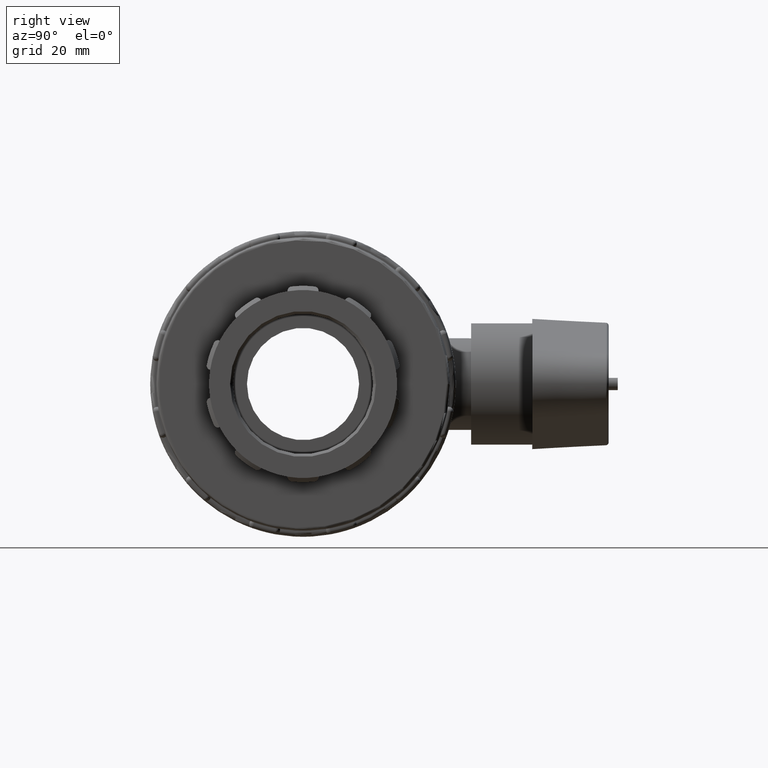
[diagram: clean part render]
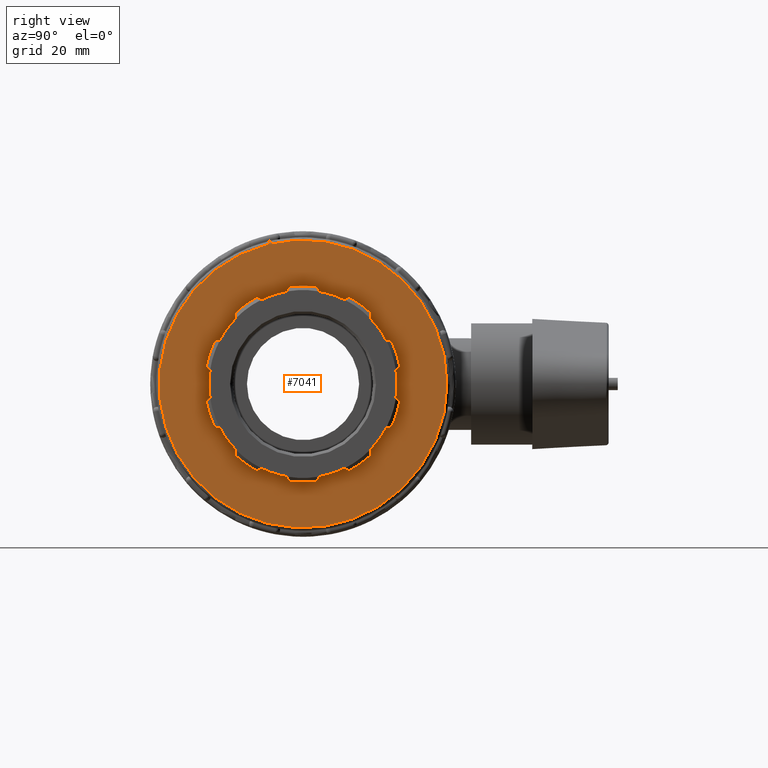
[diagram: same view with one face highlighted and labeled with its STEP entity id]
A machine part, right view. The second image highlights one B-rep face of the part: STEP entity #7041.
In plain terms, the highlighted planar face has unit normal (1, 0, 0).
Its self-contained STEP definition (entity closure, byte-faithful):
#215=FACE_BOUND('',#1294,.T.);
#334=PLANE('',#7990);
#844=FACE_OUTER_BOUND('',#1293,.T.);
#1293=EDGE_LOOP('',(#6255));
#1294=EDGE_LOOP('',(#6256,#6257,#6258,#6259,#6260,#6261,#6262,#6263,#6264,
#6265,#6266,#6267,#6268,#6269,#6270,#6271,#6272,#6273,#6274,#6275,#6276,
#6277,#6278,#6279,#6280,#6281,#6282,#6283,#6284,#6285,#6286,#6287,#6288,
#6289,#6290,#6291,#6292,#6293,#6294,#6295));
#2140=CIRCLE('',#7118,0.908729999999998);
#2141=CIRCLE('',#7120,0.908729999999994);
#2142=CIRCLE('',#7122,21.2037);
#2149=CIRCLE('',#7134,0.908729999999998);
#2150=CIRCLE('',#7136,0.908730000000002);
#2152=CIRCLE('',#7139,21.2037);
#2158=CIRCLE('',#7150,0.908729999999997);
#2159=CIRCLE('',#7152,0.908729999999998);
#2161=CIRCLE('',#7155,21.2037);
#2167=CIRCLE('',#7166,0.908730000000003);
#2168=CIRCLE('',#7168,0.908729999999999);
#2170=CIRCLE('',#7171,21.2037);
#2176=CIRCLE('',#7182,0.90873);
#2177=CIRCLE('',#7184,0.90873);
#2179=CIRCLE('',#7187,21.2037);
#2185=CIRCLE('',#7198,0.908729999999999);
#2186=CIRCLE('',#7200,0.908730000000003);
#2188=CIRCLE('',#7203,21.2037);
#2194=CIRCLE('',#7214,0.908729999999998);
#2195=CIRCLE('',#7216,0.908729999999997);
#2197=CIRCLE('',#7219,21.2037);
#2203=CIRCLE('',#7230,0.908730000000002);
#2204=CIRCLE('',#7232,0.908729999999998);
#2206=CIRCLE('',#7235,21.2037);
#2211=CIRCLE('',#7244,0.908730000000003);
#2214=CIRCLE('',#7249,0.908729999999999);
#2216=CIRCLE('',#7252,21.2037);
#2237=CIRCLE('',#7284,20.29497);
#2239=CIRCLE('',#7287,20.29497);
#2241=CIRCLE('',#7290,20.29497);
#2243=CIRCLE('',#7293,20.29497);
#2245=CIRCLE('',#7296,20.29497);
#2247=CIRCLE('',#7299,20.29497);
#2249=CIRCLE('',#7302,20.29497);
#2251=CIRCLE('',#7305,20.29497);
#2253=CIRCLE('',#7308,20.29497);
#2263=CIRCLE('',#7328,21.2037);
#2267=CIRCLE('',#7336,0.90873);
#2268=CIRCLE('',#7338,0.90873);
#2272=CIRCLE('',#7344,20.29497);
#2618=CIRCLE('',#7988,31.07418);
#2675=VERTEX_POINT('',#10519);
#2676=VERTEX_POINT('',#10521);
#2677=VERTEX_POINT('',#10525);
#2678=VERTEX_POINT('',#10526);
#2681=VERTEX_POINT('',#10545);
#2693=VERTEX_POINT('',#10610);
#2694=VERTEX_POINT('',#10612);
#2695=VERTEX_POINT('',#10616);
#2696=VERTEX_POINT('',#10617);
#2709=VERTEX_POINT('',#10698);
#2710=VERTEX_POINT('',#10700);
#2711=VERTEX_POINT('',#10704);
#2712=VERTEX_POINT('',#10705);
#2725=VERTEX_POINT('',#10786);
#2726=VERTEX_POINT('',#10788);
#2727=VERTEX_POINT('',#10792);
#2728=VERTEX_POINT('',#10793);
#2741=VERTEX_POINT('',#10874);
#2742=VERTEX_POINT('',#10876);
#2743=VERTEX_POINT('',#10880);
#2744=VERTEX_POINT('',#10881);
#2757=VERTEX_POINT('',#10962);
#2758=VERTEX_POINT('',#10964);
#2759=VERTEX_POINT('',#10968);
#2760=VERTEX_POINT('',#10969);
#2773=VERTEX_POINT('',#11050);
#2774=VERTEX_POINT('',#11052);
#2775=VERTEX_POINT('',#11056);
#2776=VERTEX_POINT('',#11057);
#2789=VERTEX_POINT('',#11138);
#2790=VERTEX_POINT('',#11140);
#2791=VERTEX_POINT('',#11144);
#2792=VERTEX_POINT('',#11145);
#2804=VERTEX_POINT('',#11211);
#2805=VERTEX_POINT('',#11213);
#2808=VERTEX_POINT('',#11234);
#2809=VERTEX_POINT('',#11235);
#2814=VERTEX_POINT('',#11346);
#2818=VERTEX_POINT('',#11373);
#2819=VERTEX_POINT('',#11377);
#3262=VERTEX_POINT('',#13993);
#3342=EDGE_CURVE('',#2676,#2675,#2140,.T.);
#3344=EDGE_CURVE('',#2677,#2678,#2141,.F.);
#3348=EDGE_CURVE('',#2678,#2681,#2142,.T.);
#3364=EDGE_CURVE('',#2694,#2693,#2149,.T.);
#3366=EDGE_CURVE('',#2695,#2696,#2150,.F.);
#3371=EDGE_CURVE('',#2696,#2675,#2152,.T.);
#3385=EDGE_CURVE('',#2710,#2709,#2158,.T.);
#3387=EDGE_CURVE('',#2711,#2712,#2159,.F.);
#3392=EDGE_CURVE('',#2712,#2693,#2161,.T.);
#3406=EDGE_CURVE('',#2726,#2725,#2167,.T.);
#3408=EDGE_CURVE('',#2727,#2728,#2168,.F.);
#3413=EDGE_CURVE('',#2728,#2709,#2170,.T.);
#3427=EDGE_CURVE('',#2742,#2741,#2176,.T.);
#3429=EDGE_CURVE('',#2743,#2744,#2177,.F.);
#3434=EDGE_CURVE('',#2744,#2725,#2179,.T.);
#3448=EDGE_CURVE('',#2758,#2757,#2185,.T.);
#3450=EDGE_CURVE('',#2759,#2760,#2186,.F.);
#3455=EDGE_CURVE('',#2760,#2741,#2188,.T.);
#3469=EDGE_CURVE('',#2774,#2773,#2194,.T.);
#3471=EDGE_CURVE('',#2775,#2776,#2195,.F.);
#3476=EDGE_CURVE('',#2776,#2757,#2197,.T.);
#3490=EDGE_CURVE('',#2790,#2789,#2203,.T.);
#3492=EDGE_CURVE('',#2791,#2792,#2204,.F.);
#3497=EDGE_CURVE('',#2792,#2773,#2206,.T.);
#3509=EDGE_CURVE('',#2805,#2804,#2211,.T.);
#3514=EDGE_CURVE('',#2808,#2809,#2214,.F.);
#3519=EDGE_CURVE('',#2809,#2789,#2216,.T.);
#3541=EDGE_CURVE('',#2676,#2677,#2237,.T.);
#3543=EDGE_CURVE('',#2694,#2695,#2239,.T.);
#3545=EDGE_CURVE('',#2710,#2711,#2241,.T.);
#3547=EDGE_CURVE('',#2726,#2727,#2243,.T.);
#3549=EDGE_CURVE('',#2742,#2743,#2245,.T.);
#3551=EDGE_CURVE('',#2758,#2759,#2247,.T.);
#3553=EDGE_CURVE('',#2774,#2775,#2249,.T.);
#3555=EDGE_CURVE('',#2790,#2791,#2251,.T.);
#3557=EDGE_CURVE('',#2805,#2808,#2253,.T.);
#3569=EDGE_CURVE('',#2814,#2804,#2263,.T.);
#3576=EDGE_CURVE('',#2818,#2681,#2267,.T.);
#3578=EDGE_CURVE('',#2819,#2814,#2268,.F.);
#3583=EDGE_CURVE('',#2818,#2819,#2272,.T.);
#4314=EDGE_CURVE('',#3262,#3262,#2618,.T.);
#6255=ORIENTED_EDGE('',*,*,#4314,.F.);
#6256=ORIENTED_EDGE('',*,*,#3578,.F.);
#6257=ORIENTED_EDGE('',*,*,#3583,.F.);
#6258=ORIENTED_EDGE('',*,*,#3576,.T.);
#6259=ORIENTED_EDGE('',*,*,#3348,.F.);
#6260=ORIENTED_EDGE('',*,*,#3344,.F.);
#6261=ORIENTED_EDGE('',*,*,#3541,.F.);
#6262=ORIENTED_EDGE('',*,*,#3342,.T.);
#6263=ORIENTED_EDGE('',*,*,#3371,.F.);
#6264=ORIENTED_EDGE('',*,*,#3366,.F.);
#6265=ORIENTED_EDGE('',*,*,#3543,.F.);
#6266=ORIENTED_EDGE('',*,*,#3364,.T.);
#6267=ORIENTED_EDGE('',*,*,#3392,.F.);
#6268=ORIENTED_EDGE('',*,*,#3387,.F.);
#6269=ORIENTED_EDGE('',*,*,#3545,.F.);
#6270=ORIENTED_EDGE('',*,*,#3385,.T.);
#6271=ORIENTED_EDGE('',*,*,#3413,.F.);
#6272=ORIENTED_EDGE('',*,*,#3408,.F.);
#6273=ORIENTED_EDGE('',*,*,#3547,.F.);
#6274=ORIENTED_EDGE('',*,*,#3406,.T.);
#6275=ORIENTED_EDGE('',*,*,#3434,.F.);
#6276=ORIENTED_EDGE('',*,*,#3429,.F.);
#6277=ORIENTED_EDGE('',*,*,#3549,.F.);
#6278=ORIENTED_EDGE('',*,*,#3427,.T.);
#6279=ORIENTED_EDGE('',*,*,#3455,.F.);
#6280=ORIENTED_EDGE('',*,*,#3450,.F.);
#6281=ORIENTED_EDGE('',*,*,#3551,.F.);
#6282=ORIENTED_EDGE('',*,*,#3448,.T.);
#6283=ORIENTED_EDGE('',*,*,#3476,.F.);
#6284=ORIENTED_EDGE('',*,*,#3471,.F.);
#6285=ORIENTED_EDGE('',*,*,#3553,.F.);
#6286=ORIENTED_EDGE('',*,*,#3469,.T.);
#6287=ORIENTED_EDGE('',*,*,#3497,.F.);
#6288=ORIENTED_EDGE('',*,*,#3492,.F.);
#6289=ORIENTED_EDGE('',*,*,#3555,.F.);
#6290=ORIENTED_EDGE('',*,*,#3490,.T.);
#6291=ORIENTED_EDGE('',*,*,#3519,.F.);
#6292=ORIENTED_EDGE('',*,*,#3514,.F.);
#6293=ORIENTED_EDGE('',*,*,#3557,.F.);
#6294=ORIENTED_EDGE('',*,*,#3509,.T.);
#6295=ORIENTED_EDGE('',*,*,#3569,.F.);
#7041=ADVANCED_FACE('',(#844,#215),#334,.T.);
#7118=AXIS2_PLACEMENT_3D('',#10522,#8172,#8173);
#7120=AXIS2_PLACEMENT_3D('',#10527,#8177,#8178);
#7122=AXIS2_PLACEMENT_3D('',#10546,#8183,#8184);
#7134=AXIS2_PLACEMENT_3D('',#10613,#8213,#8214);
#7136=AXIS2_PLACEMENT_3D('',#10618,#8218,#8219);
#7139=AXIS2_PLACEMENT_3D('',#10637,#8226,#8227);
#7150=AXIS2_PLACEMENT_3D('',#10701,#8253,#8254);
#7152=AXIS2_PLACEMENT_3D('',#10706,#8258,#8259);
#7155=AXIS2_PLACEMENT_3D('',#10725,#8266,#8267);
#7166=AXIS2_PLACEMENT_3D('',#10789,#8293,#8294);
#7168=AXIS2_PLACEMENT_3D('',#10794,#8298,#8299);
#7171=AXIS2_PLACEMENT_3D('',#10813,#8306,#8307);
#7182=AXIS2_PLACEMENT_3D('',#10877,#8333,#8334);
#7184=AXIS2_PLACEMENT_3D('',#10882,#8338,#8339);
#7187=AXIS2_PLACEMENT_3D('',#10901,#8346,#8347);
#7198=AXIS2_PLACEMENT_3D('',#10965,#8373,#8374);
#7200=AXIS2_PLACEMENT_3D('',#10970,#8378,#8379);
#7203=AXIS2_PLACEMENT_3D('',#10989,#8386,#8387);
#7214=AXIS2_PLACEMENT_3D('',#11053,#8413,#8414);
#7216=AXIS2_PLACEMENT_3D('',#11058,#8418,#8419);
#7219=AXIS2_PLACEMENT_3D('',#11077,#8426,#8427);
#7230=AXIS2_PLACEMENT_3D('',#11141,#8453,#8454);
#7232=AXIS2_PLACEMENT_3D('',#11146,#8458,#8459);
#7235=AXIS2_PLACEMENT_3D('',#11165,#8466,#8467);
#7244=AXIS2_PLACEMENT_3D('',#11214,#8489,#8490);
#7249=AXIS2_PLACEMENT_3D('',#11236,#8500,#8501);
#7252=AXIS2_PLACEMENT_3D('',#11255,#8508,#8509);
#7284=AXIS2_PLACEMENT_3D('',#11289,#8573,#8574);
#7287=AXIS2_PLACEMENT_3D('',#11292,#8579,#8580);
#7290=AXIS2_PLACEMENT_3D('',#11295,#8585,#8586);
#7293=AXIS2_PLACEMENT_3D('',#11298,#8591,#8592);
#7296=AXIS2_PLACEMENT_3D('',#11301,#8597,#8598);
#7299=AXIS2_PLACEMENT_3D('',#11304,#8603,#8604);
#7302=AXIS2_PLACEMENT_3D('',#11307,#8609,#8610);
#7305=AXIS2_PLACEMENT_3D('',#11310,#8615,#8616);
#7308=AXIS2_PLACEMENT_3D('',#11313,#8621,#8622);
#7328=AXIS2_PLACEMENT_3D('',#11348,#8662,#8663);
#7336=AXIS2_PLACEMENT_3D('',#11374,#8680,#8681);
#7338=AXIS2_PLACEMENT_3D('',#11378,#8685,#8686);
#7344=AXIS2_PLACEMENT_3D('',#11385,#8698,#8699);
#7988=AXIS2_PLACEMENT_3D('',#13994,#10274,#10275);
#7990=AXIS2_PLACEMENT_3D('',#13996,#10278,#10279);
#8172=DIRECTION('center_axis',(-1.,0.,0.));
#8173=DIRECTION('ref_axis',(0.,0.680089295318478,-0.733129286274403));
#8177=DIRECTION('center_axis',(-1.,0.,0.));
#8178=DIRECTION('ref_axis',(0.,0.907406534943978,-0.420253947442453));
#8183=DIRECTION('center_axis',(1.,0.,0.));
#8184=DIRECTION('ref_axis',(0.,0.,-1.));
#8213=DIRECTION('center_axis',(-1.,0.,0.));
#8214=DIRECTION('ref_axis',(0.,0.119281215109332,-0.99286050970015));
#8218=DIRECTION('center_axis',(-1.,0.,0.));
#8219=DIRECTION('ref_axis',(0.,0.487088235052192,-0.873352764507985));
#8226=DIRECTION('center_axis',(1.,0.,0.));
#8227=DIRECTION('ref_axis',(0.,0.,-1.));
#8253=DIRECTION('center_axis',(-1.,0.,0.));
#8254=DIRECTION('ref_axis',(0.,-0.487088235052193,-0.873352764507985));
#8258=DIRECTION('center_axis',(-1.,0.,0.));
#8259=DIRECTION('ref_axis',(0.,-0.119281215109332,-0.99286050970015));
#8266=DIRECTION('center_axis',(1.,0.,0.));
#8267=DIRECTION('ref_axis',(0.,0.,-1.));
#8293=DIRECTION('center_axis',(-1.,0.,0.));
#8294=DIRECTION('ref_axis',(0.,-0.907406534943978,-0.420253947442452));
#8298=DIRECTION('center_axis',(-1.,0.,0.));
#8299=DIRECTION('ref_axis',(0.,-0.68008929531848,-0.733129286274402));
#8306=DIRECTION('center_axis',(1.,0.,0.));
#8307=DIRECTION('ref_axis',(0.,0.,-1.));
#8333=DIRECTION('center_axis',(-1.,0.,0.));
#8334=DIRECTION('ref_axis',(0.,-0.981126380100933,0.193367593639784));
#8338=DIRECTION('center_axis',(-1.,0.,0.));
#8339=DIRECTION('ref_axis',(0.,-0.981126380100933,-0.193367593639784));
#8346=DIRECTION('center_axis',(1.,0.,0.));
#8347=DIRECTION('ref_axis',(0.,0.,-1.));
#8373=DIRECTION('center_axis',(-1.,0.,0.));
#8374=DIRECTION('ref_axis',(0.,-0.68008929531848,0.733129286274402));
#8378=DIRECTION('center_axis',(-1.,0.,0.));
#8379=DIRECTION('ref_axis',(0.,-0.907406534943978,0.420253947442452));
#8386=DIRECTION('center_axis',(1.,0.,0.));
#8387=DIRECTION('ref_axis',(0.,0.,-1.));
#8413=DIRECTION('center_axis',(-1.,0.,0.));
#8414=DIRECTION('ref_axis',(0.,-0.119281215109332,0.99286050970015));
#8418=DIRECTION('center_axis',(-1.,0.,0.));
#8419=DIRECTION('ref_axis',(0.,-0.487088235052193,0.873352764507985));
#8426=DIRECTION('center_axis',(1.,0.,0.));
#8427=DIRECTION('ref_axis',(0.,0.,-1.));
#8453=DIRECTION('center_axis',(-1.,0.,0.));
#8454=DIRECTION('ref_axis',(0.,0.487088235052193,0.873352764507985));
#8458=DIRECTION('center_axis',(-1.,0.,0.));
#8459=DIRECTION('ref_axis',(0.,0.119281215109332,0.99286050970015));
#8466=DIRECTION('center_axis',(1.,0.,0.));
#8467=DIRECTION('ref_axis',(0.,0.,-1.));
#8489=DIRECTION('center_axis',(-1.,0.,0.));
#8490=DIRECTION('ref_axis',(0.,0.907406534943978,0.420253947442452));
#8500=DIRECTION('center_axis',(-1.,0.,0.));
#8501=DIRECTION('ref_axis',(0.,0.68008929531848,0.733129286274402));
#8508=DIRECTION('center_axis',(1.,0.,0.));
#8509=DIRECTION('ref_axis',(0.,0.,-1.));
#8573=DIRECTION('center_axis',(1.,0.,0.));
#8574=DIRECTION('ref_axis',(0.,0.587785252292473,0.809016994374947));
#8579=DIRECTION('center_axis',(1.,0.,0.));
#8580=DIRECTION('ref_axis',(0.,0.951056516295154,0.309016994374947));
#8585=DIRECTION('center_axis',(1.,0.,0.));
#8586=DIRECTION('ref_axis',(0.,0.951056516295154,-0.309016994374948));
#8591=DIRECTION('center_axis',(1.,0.,0.));
#8592=DIRECTION('ref_axis',(0.,0.587785252292473,-0.809016994374948));
#8597=DIRECTION('center_axis',(1.,0.,0.));
#8598=DIRECTION('ref_axis',(0.,-1.64113032632E-16,-1.));
#8603=DIRECTION('center_axis',(1.,0.,0.));
#8604=DIRECTION('ref_axis',(0.,-0.587785252292473,-0.809016994374947));
#8609=DIRECTION('center_axis',(1.,0.,0.));
#8610=DIRECTION('ref_axis',(0.,-0.951056516295154,-0.309016994374947));
#8615=DIRECTION('center_axis',(1.,0.,0.));
#8616=DIRECTION('ref_axis',(0.,-0.951056516295154,0.309016994374947));
#8621=DIRECTION('center_axis',(1.,0.,0.));
#8622=DIRECTION('ref_axis',(0.,-0.587785252292473,0.809016994374948));
#8662=DIRECTION('center_axis',(1.,0.,0.));
#8663=DIRECTION('ref_axis',(0.,0.,-1.));
#8680=DIRECTION('center_axis',(-1.,0.,0.));
#8681=DIRECTION('ref_axis',(0.,0.981126380100933,-0.193367593639784));
#8685=DIRECTION('center_axis',(-1.,0.,0.));
#8686=DIRECTION('ref_axis',(0.,0.981126380100933,0.193367593639784));
#8698=DIRECTION('center_axis',(1.,0.,0.));
#8699=DIRECTION('ref_axis',(0.,0.,1.));
#10274=DIRECTION('center_axis',(-1.,0.,0.));
#10275=DIRECTION('ref_axis',(0.,-1.,1.83697019872103E-16));
#10278=DIRECTION('center_axis',(1.,0.,0.));
#10279=DIRECTION('ref_axis',(0.,0.,-1.));
#10519=CARTESIAN_POINT('',(37.7,14.4204093911444,-15.5450534473765));
#10521=CARTESIAN_POINT('',(37.7,14.4546052248472,-14.2460589320246));
#10522=CARTESIAN_POINT('Origin',(37.7,13.8023918458097,-14.8788368710604));
#10525=CARTESIAN_POINT('',(37.7,18.0155258402855,-9.34487217670232));
#10526=CARTESIAN_POINT('',(37.7,19.2403759449916,-8.91093862538554));
#10527=CARTESIAN_POINT('Origin',(37.7,18.415788404492,-8.52904125572616));
#10545=CARTESIAN_POINT('',(37.7,20.8035094257461,-4.10010844525989));
#10546=CARTESIAN_POINT('Origin',(37.7,0.,0.));
#10610=CARTESIAN_POINT('',(37.7,2.52920310081374,-21.0523163895291));
#10612=CARTESIAN_POINT('',(37.7,3.32039793034879,-20.0215075577499));
#10613=CARTESIAN_POINT('Origin',(37.7,2.42080868220744,-20.1500742585493));
#10616=CARTESIAN_POINT('',(37.7,9.08208851736809,-18.1494208024276));
#10617=CARTESIAN_POINT('',(37.7,10.3280728095762,-18.518310012798));
#10618=CARTESIAN_POINT('Origin',(37.7,9.88544111773719,-17.7246681551066));
#10637=CARTESIAN_POINT('Origin',(37.7,0.,0.));
#10698=CARTESIAN_POINT('',(37.7,-10.3280728095762,-18.518310012798));
#10700=CARTESIAN_POINT('',(37.7,-9.08208851736809,-18.1494208024276));
#10701=CARTESIAN_POINT('Origin',(37.7,-9.88544111773719,-17.7246681551066));
#10704=CARTESIAN_POINT('',(37.7,-3.32039793034879,-20.0215075577499));
#10705=CARTESIAN_POINT('',(37.7,-2.52920310081374,-21.0523163895291));
#10706=CARTESIAN_POINT('Origin',(37.7,-2.42080868220744,-20.1500742585493));
#10725=CARTESIAN_POINT('Origin',(37.7,0.,0.));
#10786=CARTESIAN_POINT('',(37.7,-19.2403759449916,-8.91093862538554));
#10788=CARTESIAN_POINT('',(37.7,-18.0155258402855,-9.34487217670232));
#10789=CARTESIAN_POINT('Origin',(37.7,-18.415788404492,-8.52904125572616));
#10792=CARTESIAN_POINT('',(37.7,-14.4546052248472,-14.2460589320246));
#10793=CARTESIAN_POINT('',(37.7,-14.4204093911444,-15.5450534473765));
#10794=CARTESIAN_POINT('Origin',(37.7,-13.8023918458097,-14.8788368710604));
#10813=CARTESIAN_POINT('Origin',(37.7,0.,0.));
#10874=CARTESIAN_POINT('',(37.7,-20.8035094257461,4.10010844525989));
#10876=CARTESIAN_POINT('',(37.7,-20.0676446174159,3.0291));
#10877=CARTESIAN_POINT('Origin',(37.7,-19.911930450357,3.92438951189162));
#10880=CARTESIAN_POINT('',(37.7,-20.0676446174159,-3.0291));
#10881=CARTESIAN_POINT('',(37.7,-20.8035094257461,-4.10010844525989));
#10882=CARTESIAN_POINT('Origin',(37.7,-19.911930450357,-3.92438951189161));
#10901=CARTESIAN_POINT('Origin',(37.7,0.,0.));
#10962=CARTESIAN_POINT('',(37.7,-14.4204093911444,15.5450534473765));
#10964=CARTESIAN_POINT('',(37.7,-14.4546052248472,14.2460589320246));
#10965=CARTESIAN_POINT('Origin',(37.7,-13.8023918458097,14.8788368710604));
#10968=CARTESIAN_POINT('',(37.7,-18.0155258402855,9.34487217670232));
#10969=CARTESIAN_POINT('',(37.7,-19.2403759449916,8.91093862538554));
#10970=CARTESIAN_POINT('Origin',(37.7,-18.415788404492,8.52904125572616));
#10989=CARTESIAN_POINT('Origin',(37.7,0.,0.));
#11050=CARTESIAN_POINT('',(37.7,-2.52920310081374,21.0523163895291));
#11052=CARTESIAN_POINT('',(37.7,-3.32039793034879,20.0215075577499));
#11053=CARTESIAN_POINT('Origin',(37.7,-2.42080868220744,20.1500742585493));
#11056=CARTESIAN_POINT('',(37.7,-9.08208851736809,18.1494208024276));
#11057=CARTESIAN_POINT('',(37.7,-10.3280728095762,18.518310012798));
#11058=CARTESIAN_POINT('Origin',(37.7,-9.88544111773719,17.7246681551066));
#11077=CARTESIAN_POINT('Origin',(37.7,0.,0.));
#11138=CARTESIAN_POINT('',(37.7,10.3280728095762,18.518310012798));
#11140=CARTESIAN_POINT('',(37.7,9.08208851736809,18.1494208024276));
#11141=CARTESIAN_POINT('Origin',(37.7,9.88544111773719,17.7246681551066));
#11144=CARTESIAN_POINT('',(37.7,3.32039793034879,20.0215075577499));
#11145=CARTESIAN_POINT('',(37.7,2.52920310081374,21.0523163895291));
#11146=CARTESIAN_POINT('Origin',(37.7,2.42080868220744,20.1500742585493));
#11165=CARTESIAN_POINT('Origin',(37.7,0.,0.));
#11211=CARTESIAN_POINT('',(37.7,19.2403759449916,8.91093862538554));
#11213=CARTESIAN_POINT('',(37.7,18.0155258402855,9.34487217670232));
#11214=CARTESIAN_POINT('Origin',(37.7,18.415788404492,8.52904125572616));
#11234=CARTESIAN_POINT('',(37.7,14.4546052248472,14.2460589320246));
#11235=CARTESIAN_POINT('',(37.7,14.4204093911444,15.5450534473765));
#11236=CARTESIAN_POINT('Origin',(37.7,13.8023918458097,14.8788368710604));
#11255=CARTESIAN_POINT('Origin',(37.7,0.,0.));
#11289=CARTESIAN_POINT('Origin',(37.7,0.,0.));
#11292=CARTESIAN_POINT('Origin',(37.7,0.,0.));
#11295=CARTESIAN_POINT('Origin',(37.7,0.,0.));
#11298=CARTESIAN_POINT('Origin',(37.7,0.,0.));
#11301=CARTESIAN_POINT('Origin',(37.7,0.,0.));
#11304=CARTESIAN_POINT('Origin',(37.7,0.,0.));
#11307=CARTESIAN_POINT('Origin',(37.7,0.,0.));
#11310=CARTESIAN_POINT('Origin',(37.7,0.,0.));
#11313=CARTESIAN_POINT('Origin',(37.7,0.,0.));
#11346=CARTESIAN_POINT('',(37.7,20.8035094257461,4.1001084452599));
#11348=CARTESIAN_POINT('Origin',(37.7,0.,0.));
#11373=CARTESIAN_POINT('',(37.7,20.0676446174159,-3.0291));
#11374=CARTESIAN_POINT('Origin',(37.7,19.911930450357,-3.92438951189161));
#11377=CARTESIAN_POINT('',(37.7,20.0676446174159,3.0291));
#11378=CARTESIAN_POINT('Origin',(37.7,19.911930450357,3.92438951189162));
#11385=CARTESIAN_POINT('Origin',(37.7,0.,0.));
#13993=CARTESIAN_POINT('',(37.7,31.07418,-9.51372376828217E-15));
#13994=CARTESIAN_POINT('Origin',(37.7,0.,0.));
#13996=CARTESIAN_POINT('Origin',(37.7,21.2037,0.));